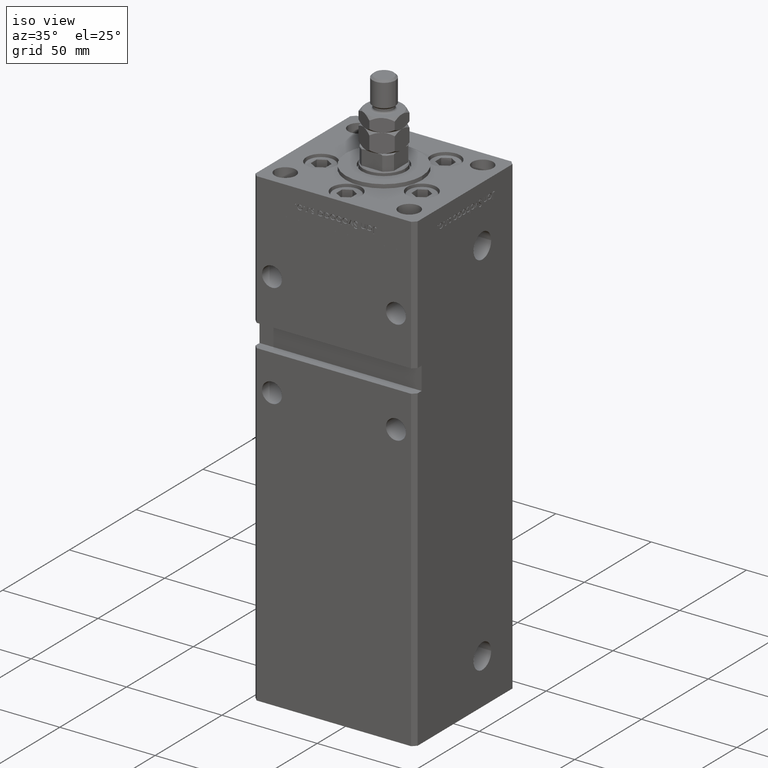
[diagram: clean part render]
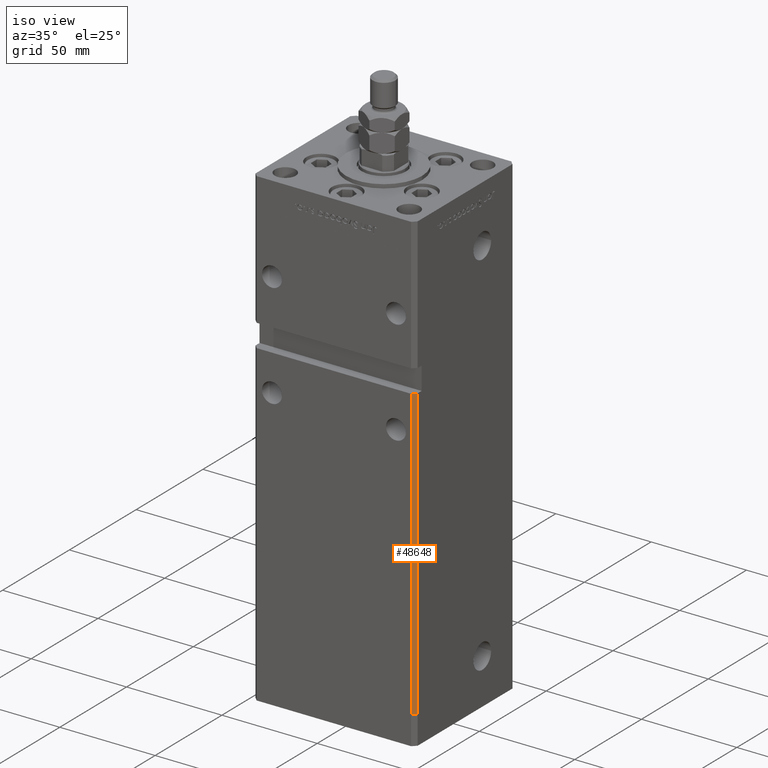
[diagram: same view with one face highlighted and labeled with its STEP entity id]
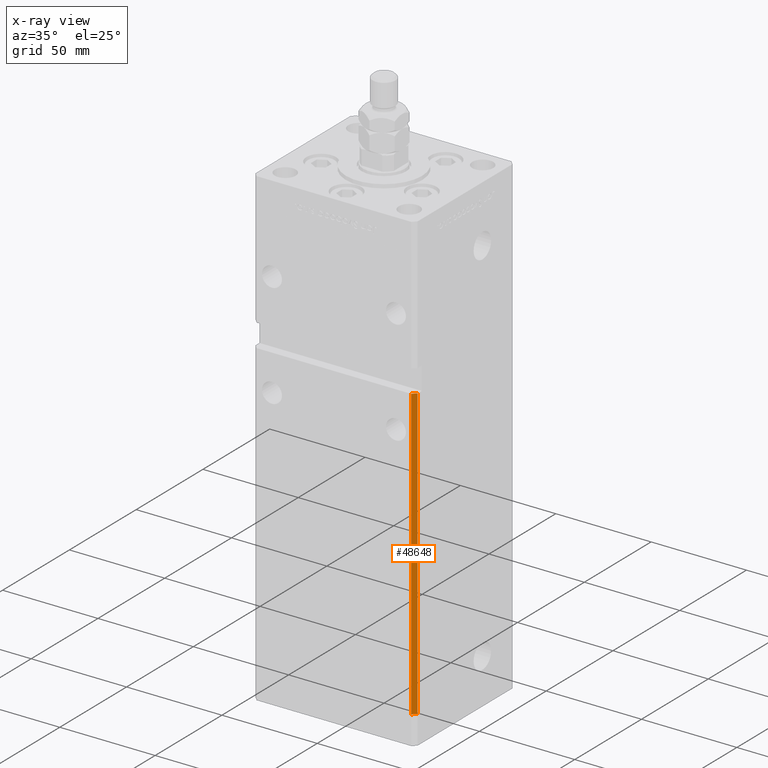
[diagram: x-ray of the same camera — body ghosted, the highlighted face saturated]
A machine part, iso view. The second image highlights one B-rep face of the part: STEP entity #48648.
The next image is the same camera in x-ray: the body ghosted, the highlighted face saturated — about 0% of this face is hidden behind the body in this view.
In plain terms, the highlighted planar face has unit normal (0.7071, -0.7071, 0).
Its self-contained STEP definition (entity closure, byte-faithful):
#2583 = ORIENTED_EDGE ( 'NONE', *, *, #36123, .F. ) ;
#2893 = CARTESIAN_POINT ( 'NONE',  ( 42.49999999999998579, -35.50000000000000711, 152.0000000000000284 ) ) ;
#2904 = FACE_OUTER_BOUND ( 'NONE', #29331, .T. ) ;
#7404 = CARTESIAN_POINT ( 'NONE',  ( 40.49999999999998579, -37.50000000000000711, 218.5000000000000000 ) ) ;
#9197 = CARTESIAN_POINT ( 'NONE',  ( 42.49999999999998579, -35.50000000000000711, 218.5000000000000000 ) ) ;
#9302 = ORIENTED_EDGE ( 'NONE', *, *, #47883, .F. ) ;
#11740 = DIRECTION ( 'NONE',  ( 0.7071067811865474617, 0.7071067811865474617, 0.000000000000000000 ) ) ;
#13035 = CARTESIAN_POINT ( 'NONE',  ( 40.49999999999998579, -37.50000000000000711, 152.0000000000000284 ) ) ;
#13348 = DIRECTION ( 'NONE',  ( -0.000000000000000000, -0.000000000000000000, -1.000000000000000000 ) ) ;
#14783 = LINE ( 'NONE', #2893, #45301 ) ;
#19473 = DIRECTION ( 'NONE',  ( 0.7071067811865474617, 0.7071067811865474617, 0.000000000000000000 ) ) ;
#21310 = ORIENTED_EDGE ( 'NONE', *, *, #22100, .F. ) ;
#22100 = EDGE_CURVE ( 'NONE', #34060, #45316, #22733, .T. ) ;
#22733 = LINE ( 'NONE', #9197, #34571 ) ;
#23411 = CARTESIAN_POINT ( 'NONE',  ( 40.49999999999998579, -37.50000000000000711, 0.000000000000000000 ) ) ;
#24008 = VECTOR ( 'NONE', #53329, 1000.000000000000000 ) ;
#24189 = PLANE ( 'NONE',  #51484 ) ;
#28068 = CARTESIAN_POINT ( 'NONE',  ( 42.49999999999998579, -35.50000000000000711, 0.000000000000000000 ) ) ;
#28536 = LINE ( 'NONE', #45414, #33396 ) ;
#29331 = EDGE_LOOP ( 'NONE', ( #9302, #43663, #2583, #21310 ) ) ;
#30575 = CARTESIAN_POINT ( 'NONE',  ( 42.49999999999998579, -35.50000000000000711, 152.0000000000000284 ) ) ;
#33211 = DIRECTION ( 'NONE',  ( -0.7071067811865474617, -0.7071067811865474617, 0.000000000000000000 ) ) ;
#33396 = VECTOR ( 'NONE', #33211, 1000.000000000000114 ) ;
#34060 = VERTEX_POINT ( 'NONE', #30575 ) ;
#34457 = VERTEX_POINT ( 'NONE', #23411 ) ;
#34571 = VECTOR ( 'NONE', #13348, 1000.000000000000000 ) ;
#36123 = EDGE_CURVE ( 'NONE', #45316, #34457, #28536, .T. ) ;
#36428 = LINE ( 'NONE', #7404, #24008 ) ;
#43663 = ORIENTED_EDGE ( 'NONE', *, *, #49904, .T. ) ;
#44394 = DIRECTION ( 'NONE',  ( 0.7071067811865475727, -0.7071067811865475727, 0.000000000000000000 ) ) ;
#45301 = VECTOR ( 'NONE', #19473, 1000.000000000000114 ) ;
#45316 = VERTEX_POINT ( 'NONE', #28068 ) ;
#45414 = CARTESIAN_POINT ( 'NONE',  ( 42.49999999999998579, -35.50000000000000711, 0.000000000000000000 ) ) ;
#47883 = EDGE_CURVE ( 'NONE', #49797, #34060, #14783, .T. ) ;
#48648 = ADVANCED_FACE ( 'NONE', ( #2904 ), #24189, .T. ) ;
#49797 = VERTEX_POINT ( 'NONE', #13035 ) ;
#49904 = EDGE_CURVE ( 'NONE', #49797, #34457, #36428, .T. ) ;
#51484 = AXIS2_PLACEMENT_3D ( 'NONE', #53791, #44394, #11740 ) ;
#53329 = DIRECTION ( 'NONE',  ( -0.000000000000000000, -0.000000000000000000, -1.000000000000000000 ) ) ;
#53791 = CARTESIAN_POINT ( 'NONE',  ( 42.49999999999998579, -35.50000000000000711, 218.5000000000000000 ) ) ;